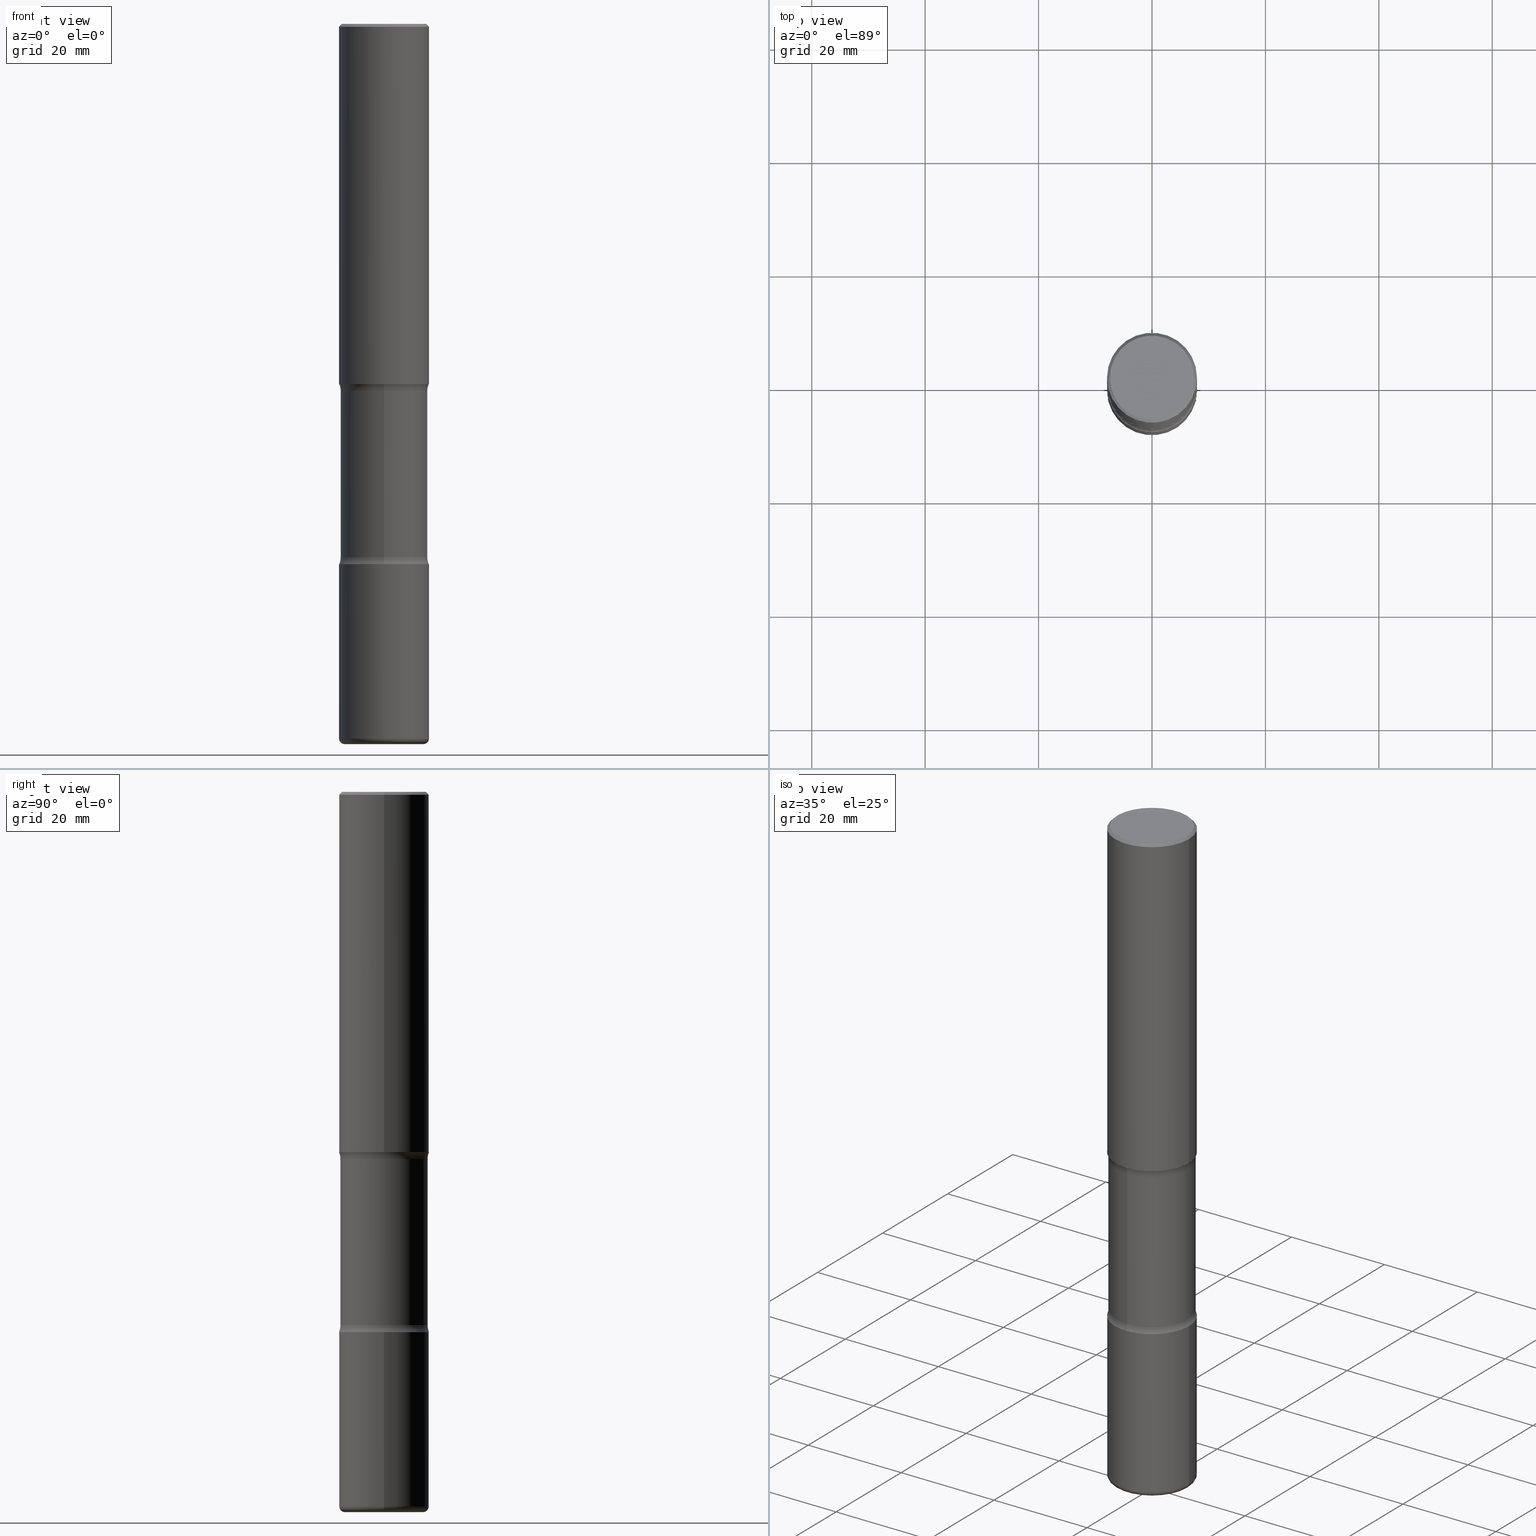
[diagram: canonical four-view strip — front | top / right | iso, engineering-drawing reading convention]
A machine part, canonical four-view strip (front | top / right | iso — engineering-drawing reading convention). The complete STEP part file that produces these views, byte-faithful:
ISO-10303-21;
HEADER;
FILE_DESCRIPTION (( 'STEP AP203' ),
    '1' );
FILE_NAME ('36468.STEP',
    '2024-03-01T23:57:01',
    ( '' ),
    ( '' ),
    'SwSTEP 2.0',
    'SolidWorks 2023',
    '' );
FILE_SCHEMA (( 'CONFIG_CONTROL_DESIGN' ));
ENDSEC;

DATA;
#1 = PLANE ( 'NONE',  #331 ) ;
#2 = CIRCLE ( 'NONE', #424, 0.3125000000000001665 ) ;
#3 = LOCAL_TIME ( 18, 57, 1.000000000000000000, #138 ) ;
#4 = DIRECTION ( 'NONE',  ( 6.982962677686265922E-15, 1.000000000000000000, -3.601450645713572868E-15 ) ) ;
#5 = CARTESIAN_POINT ( 'NONE',  ( -0.3125000000000002776, -2.178820437692046306E-15, -2.500000000000000444 ) ) ;
#6 = CARTESIAN_POINT ( 'NONE',  ( 0.2924999999999997602, -2.110215457714318748E-15, 1.452077414963940822E-29 ) ) ;
#7 = APPROVAL ( #9, 'UNSPECIFIED' ) ;
#8 = CARTESIAN_POINT ( 'NONE',  ( 4.890937612370306439E-31, -6.982962677686338448E-17, -0.02000000000000013572 ) ) ;
#9 = APPROVAL_STATUS ( 'not_yet_approved' ) ;
#10 = PERSON_AND_ORGANIZATION_ROLE ( 'design_owner' ) ;
#11 = DIRECTION ( 'NONE',  ( -2.445468806185136597E-29, 3.491481338843145583E-15, 1.000000000000000000 ) ) ;
#12 = AXIS2_PLACEMENT_3D ( 'NONE', #269, #28, #272 ) ;
#13 = CIRCLE ( 'NONE', #433, 0.2725000000000002420 ) ;
#14 = DATE_AND_TIME ( #360, #544 ) ;
#15 = CARTESIAN_POINT ( 'NONE',  ( 1.212952527867828129E-28, -1.731774744066200960E-14, -4.960000000000001741 ) ) ;
#16 = ADVANCED_FACE ( 'NONE', ( #162 ), #1, .F. ) ;
#17 = CYLINDRICAL_SURFACE ( 'NONE', #251, 0.3125000000000002776 ) ;
#18 = DATE_TIME_ROLE ( 'creation_date' ) ;
#19 = DIRECTION ( 'NONE',  ( -2.445468806185136597E-29, 3.491481338843145583E-15, 1.000000000000000000 ) ) ;
#20 = CLOSED_SHELL ( 'NONE', ( #183, #165, #206, #421, #26, #16 ) ) ;
#21 = CALENDAR_DATE ( 2024, 1, 3 ) ;
#22 = AXIS2_PLACEMENT_3D ( 'NONE', #376, #549, #213 ) ;
#23 = CIRCLE ( 'NONE', #497, 0.1249999999999998612 ) ;
#24 = ORIENTED_EDGE ( 'NONE', *, *, #383, .T. ) ;
#25 = DIRECTION ( 'NONE',  ( -2.368677649628414048E-29, 3.601450645713572868E-15, 1.000000000000000000 ) ) ;
#26 = ADVANCED_FACE ( 'NONE', ( #43 ), #344, .T. ) ;
#27 = ORIENTED_EDGE ( 'NONE', *, *, #479, .T. ) ;
#28 = DIRECTION ( 'NONE',  ( 2.445468806185136597E-29, -3.491481338843145583E-15, -1.000000000000000000 ) ) ;
#29 = VERTEX_POINT ( 'NONE', #378 ) ;
#30 = CARTESIAN_POINT ( 'NONE',  ( 2.985216544710968712E-15, 0.4274999999999870570, -3.701010205144338094 ) ) ;
#31 = CIRCLE ( 'NONE', #100, 0.1249999999999999584 ) ;
#32 = ORIENTED_EDGE ( 'NONE', *, *, #488, .F. ) ;
#33 = EDGE_CURVE ( 'NONE', #340, #113, #65, .T. ) ;
#34 = DIRECTION ( 'NONE',  ( 1.000000000000000000, -6.982962677686269077E-15, 0.000000000000000000 ) ) ;
#35 = ORIENTED_EDGE ( 'NONE', *, *, #488, .T. ) ;
#36 = DIRECTION ( 'NONE',  ( 2.368677649628414609E-29, -3.601450645713572868E-15, -1.000000000000000000 ) ) ;
#37 = DIRECTION ( 'NONE',  ( -2.445468806185136597E-29, 3.491481338843145583E-15, 1.000000000000000000 ) ) ;
#38 = DIRECTION ( 'NONE',  ( 6.982962677686265922E-15, 1.000000000000000000, -3.601450645713572868E-15 ) ) ;
#39 = AXIS2_PLACEMENT_3D ( 'NONE', #475, #308, #177 ) ;
#40 = ORIENTED_EDGE ( 'NONE', *, *, #502, .F. ) ;
#41 = AXIS2_PLACEMENT_3D ( 'NONE', #455, #244, #34 ) ;
#42 = CARTESIAN_POINT ( 'NONE',  ( -2.932862894047238219E-15, -0.4275000000000128697, -3.701010205144334986 ) ) ;
#43 = FACE_OUTER_BOUND ( 'NONE', #454, .T. ) ;
#44 = CARTESIAN_POINT ( 'NONE',  ( -2.075300644325765614E-15, -0.3025000000000174216, -4.999999999999999112 ) ) ;
#45 = EDGE_LOOP ( 'NONE', ( #554, #214, #273, #146 ) ) ;
#46 = CARTESIAN_POINT ( 'NONE',  ( -2.143905624303512894E-15, -0.3125000000000133782, -3.749999999999999556 ) ) ;
#47 = DIRECTION ( 'NONE',  ( 2.368677649628414609E-29, -3.601450645713572868E-15, -1.000000000000000000 ) ) ;
#48 = CLOSED_SHELL ( 'NONE', ( #168, #224, #301, #402, #542, #320, #265, #283 ) ) ;
#49 = CIRCLE ( 'NONE', #362, 0.2924999999999997602 ) ;
#50 = SECURITY_CLASSIFICATION ( '', '', #480 ) ;
#51 = ADVANCED_FACE ( 'NONE', ( #377 ), #164, .T. ) ;
#52 = CARTESIAN_POINT ( 'NONE',  ( 0.000000000000000000, 0.000000000000000000, 0.000000000000000000 ) ) ;
#53 = CARTESIAN_POINT ( 'NONE',  ( 0.3124999999999998335, -2.213735251080466123E-15, -0.02000000000000013572 ) ) ;
#54 = APPROVAL_DATE_TIME ( #14, #443 ) ;
#55 = CARTESIAN_POINT ( 'NONE',  ( 2.042516583223230962E-15, 0.2924999999999997602, -1.021258291611619228E-15 ) ) ;
#56 = EDGE_CURVE ( 'NONE', #414, #282, #160, .T. ) ;
#57 = AXIS2_PLACEMENT_3D ( 'NONE', #543, #540, #195 ) ;
#58 = AXIS2_PLACEMENT_3D ( 'NONE', #425, #381, #38 ) ;
#59 = SHAPE_DEFINITION_REPRESENTATION ( #263, #185 ) ;
#60 = DIRECTION ( 'NONE',  ( 1.000000000000000000, -6.982962677686265922E-15, 0.000000000000000000 ) ) ;
#61 = CARTESIAN_POINT ( 'NONE',  ( 1.212952527867828129E-28, -1.731774744066200960E-14, -4.960000000000001741 ) ) ;
#62 = APPROVAL_ROLE ( '' ) ;
#63 = DIRECTION ( 'NONE',  ( 2.368677649628414609E-29, -3.601450645713572868E-15, -1.000000000000000000 ) ) ;
#64 = ORIENTED_EDGE ( 'NONE', *, *, #179, .F. ) ;
#65 = CIRCLE ( 'NONE', #108, 0.3024999999999997691 ) ;
#66 = AXIS2_PLACEMENT_3D ( 'NONE', #537, #150, #534 ) ;
#67 = CARTESIAN_POINT ( 'NONE',  ( -0.3125000000000002776, -1.298495518141158727E-14, -3.750000000000000888 ) ) ;
#68 = ORIENTED_EDGE ( 'NONE', *, *, #82, .T. ) ;
#69 = CARTESIAN_POINT ( 'NONE',  ( 0.000000000000000000, 0.000000000000000000, 0.000000000000000000 ) ) ;
#70 = ORIENTED_EDGE ( 'NONE', *, *, #117, .T. ) ;
#71 = CARTESIAN_POINT ( 'NONE',  ( 1.213135508522978113E-28, -1.759486832780376370E-14, -5.000000000000000000 ) ) ;
#72 = VERTEX_POINT ( 'NONE', #389 ) ;
#73 = EDGE_CURVE ( 'NONE', #547, #282, #438, .T. ) ;
#74 = DIRECTION ( 'NONE',  ( 2.445468806185136597E-29, -3.491481338843145583E-15, -1.000000000000000000 ) ) ;
#75 = AXIS2_PLACEMENT_3D ( 'NONE', #144, #445, #369 ) ;
#76 = CIRCLE ( 'NONE', #508, 0.2725000000000002420 ) ;
#77 = EDGE_LOOP ( 'NONE', ( #64, #254 ) ) ;
#78 = CARTESIAN_POINT ( 'NONE',  ( 6.209660961158745588E-29, -8.591241713519832709E-15, -2.500000000000000444 ) ) ;
#79 = ORIENTED_EDGE ( 'NONE', *, *, #326, .T. ) ;
#80 = DIRECTION ( 'NONE',  ( 1.000000000000000000, -6.982962677686266711E-15, 4.876176775795936353E-29 ) ) ;
#81 = ORIENTED_EDGE ( 'NONE', *, *, #117, .F. ) ;
#82 = EDGE_CURVE ( 'NONE', #113, #72, #521, .T. ) ;
#83 = CARTESIAN_POINT ( 'NONE',  ( 4.890937612370306439E-31, -6.982962677686338448E-17, -0.02000000000000013572 ) ) ;
#84 = AXIS2_PLACEMENT_3D ( 'NONE', #408, #278, #401 ) ;
#85 = ORIENTED_EDGE ( 'NONE', *, *, #73, .T. ) ;
#86 = CIRCLE ( 'NONE', #41, 0.3125000000000002776 ) ;
#87 = LINE ( 'NONE', #44, #525 ) ;
#88 = ORIENTED_EDGE ( 'NONE', *, *, #124, .T. ) ;
#89 = APPROVAL_STATUS ( 'not_yet_approved' ) ;
#90 = ORIENTED_EDGE ( 'NONE', *, *, #124, .F. ) ;
#91 = EDGE_CURVE ( 'NONE', #239, #541, #153, .T. ) ;
#92 = LINE ( 'NONE', #311, #217 ) ;
#93 = AXIS2_PLACEMENT_3D ( 'NONE', #78, #36, #255 ) ;
#94 = AXIS2_PLACEMENT_3D ( 'NONE', #136, #223, #4 ) ;
#95 = EDGE_CURVE ( 'NONE', #29, #550, #524, .T. ) ;
#96 = CARTESIAN_POINT ( 'NONE',  ( 6.325701993293238251E-29, -8.767676041836138873E-15, -2.548989794855665014 ) ) ;
#97 = DIRECTION ( 'NONE',  ( -1.000000000000000000, 6.982962677686265922E-15, -4.876176775795935793E-29 ) ) ;
#98 = CARTESIAN_POINT ( 'NONE',  ( 6.113672015462842613E-29, -8.728703347107866520E-15, -2.500000000000000444 ) ) ;
#99 = DIRECTION ( 'NONE',  ( 2.368677649628414609E-29, -3.601450645713572868E-15, -1.000000000000000000 ) ) ;
#100 = AXIS2_PLACEMENT_3D ( 'NONE', #30, #281, #111 ) ;
#101 = DIRECTION ( 'NONE',  ( -2.445468806185136877E-29, 3.491481338843145188E-15, 1.000000000000000000 ) ) ;
#102 = ADVANCED_FACE ( 'NONE', ( #487 ), #527, .F. ) ;
#103 = COORDINATED_UNIVERSAL_TIME_OFFSET ( 5, 0, .BEHIND. ) ;
#104 = FACE_OUTER_BOUND ( 'NONE', #280, .T. ) ;
#105 = ORIENTED_EDGE ( 'NONE', *, *, #539, .T. ) ;
#106 = CC_DESIGN_PERSON_AND_ORGANIZATION_ASSIGNMENT ( #536, #184, ( #494 ) ) ;
#107 = VERTEX_POINT ( 'NONE', #528 ) ;
#108 = AXIS2_PLACEMENT_3D ( 'NONE', #557, #47, #506 ) ;
#109 = CARTESIAN_POINT ( 'NONE',  ( 2.182175836777020667E-15, 0.3124999999999915623, -2.500000000000001776 ) ) ;
#110 = VERTEX_POINT ( 'NONE', #5 ) ;
#111 = DIRECTION ( 'NONE',  ( -6.982962677686267499E-15, -1.000000000000000000, 0.000000000000000000 ) ) ;
#112 = LINE ( 'NONE', #499, #456 ) ;
#113 = VERTEX_POINT ( 'NONE', #519 ) ;
#114 = AXIS2_PLACEMENT_3D ( 'NONE', #359, #306, #478 ) ;
#115 = DIRECTION ( 'NONE',  ( -2.445468806185136597E-29, 3.491481338843145583E-15, 1.000000000000000000 ) ) ;
#116 = VERTEX_POINT ( 'NONE', #227 ) ;
#117 = EDGE_CURVE ( 'NONE', #541, #107, #274, .T. ) ;
#118 = DIRECTION ( 'NONE',  ( 1.000000000000000000, -6.860497997771530774E-15, 4.839452144027510076E-29 ) ) ;
#119 = ORIENTED_EDGE ( 'NONE', *, *, #522, .F. ) ;
#120 = ADVANCED_FACE ( 'NONE', ( #262 ), #225, .T. ) ;
#121 = DIRECTION ( 'NONE',  ( 1.000000000000000000, -6.982962677686267499E-15, 0.000000000000000000 ) ) ;
#122 = EDGE_LOOP ( 'NONE', ( #407, #90 ) ) ;
#123 = CARTESIAN_POINT ( 'NONE',  ( -2.109603134314655426E-15, -0.3025000000000128697, -3.701010205144335430 ) ) ;
#124 = EDGE_CURVE ( 'NONE', #116, #298, #2, .T. ) ;
#125 = ORIENTED_EDGE ( 'NONE', *, *, #548, .F. ) ;
#126 = APPROVAL_PERSON_ORGANIZATION ( #135, #443, #395 ) ;
#127 = DIRECTION ( 'NONE',  ( 2.368677649628414329E-29, -3.601450645713572868E-15, -1.000000000000000000 ) ) ;
#128 = EDGE_CURVE ( 'NONE', #110, #325, #353, .T. ) ;
#129 = CARTESIAN_POINT ( 'NONE',  ( 0.000000000000000000, 0.000000000000000000, 0.000000000000000000 ) ) ;
#130 = DIRECTION ( 'NONE',  ( 0.000000000000000000, 0.000000000000000000, 1.000000000000000000 ) ) ;
#131 = DIRECTION ( 'NONE',  ( -2.445468806185136597E-29, 3.491481338843145583E-15, 1.000000000000000000 ) ) ;
#132 = PRODUCT ( '36468', '36468', '', ( #472 ) ) ;
#133 = CARTESIAN_POINT ( 'NONE',  ( 0.2725000000000003531, -1.922060477033151949E-14, -4.960000000000001741 ) ) ;
#134 = LOCAL_TIME ( 18, 57, 1.000000000000000000, #226 ) ;
#135 = PERSON_AND_ORGANIZATION ( #412, #259 ) ;
#136 = CARTESIAN_POINT ( 'NONE',  ( 6.113672015462842613E-29, -8.728703347107866520E-15, -2.500000000000000444 ) ) ;
#137 = DIRECTION ( 'NONE',  ( 2.368677649628414329E-29, -3.601450645713572868E-15, -1.000000000000000000 ) ) ;
#138 = COORDINATED_UNIVERSAL_TIME_OFFSET ( 5, 0, .BEHIND. ) ;
#139 = CARTESIAN_POINT ( 'NONE',  ( 6.209660961158745588E-29, -8.591241713519832709E-15, -2.500000000000000444 ) ) ;
#140 = EDGE_CURVE ( 'NONE', #72, #517, #553, .T. ) ;
#141 = CARTESIAN_POINT ( 'NONE',  ( 0.000000000000000000, 0.000000000000000000, 0.000000000000000000 ) ) ;
#142 = AXIS2_PLACEMENT_3D ( 'NONE', #98, #11, #60 ) ;
#143 = APPROVAL_PERSON_ORGANIZATION ( #268, #7, #62 ) ;
#144 = CARTESIAN_POINT ( 'NONE',  ( 9.170508023194263359E-29, -1.309305502066179899E-14, -3.750000000000000888 ) ) ;
#145 = EDGE_CURVE ( 'NONE', #110, #414, #92, .T. ) ;
#146 = ORIENTED_EDGE ( 'NONE', *, *, #140, .T. ) ;
#147 = APPROVAL_DATE_TIME ( #191, #7 ) ;
#148 = CARTESIAN_POINT ( 'NONE',  ( -0.2725000000000003531, -1.538151848571573369E-14, -4.960000000000001741 ) ) ;
#149 = ORIENTED_EDGE ( 'NONE', *, *, #73, .F. ) ;
#150 = DIRECTION ( 'NONE',  ( 2.368677649628414609E-29, -3.601450645713572868E-15, -1.000000000000000000 ) ) ;
#151 = EDGE_LOOP ( 'NONE', ( #212, #503, #241, #233 ) ) ;
#152 = CC_DESIGN_DATE_AND_TIME_ASSIGNMENT ( #436, #483, ( #50 ) ) ;
#153 = CIRCLE ( 'NONE', #209, 0.03999999999999926531 ) ;
#154 = FACE_OUTER_BOUND ( 'NONE', #464, .T. ) ;
#155 = ORIENTED_EDGE ( 'NONE', *, *, #479, .F. ) ;
#156 = DIRECTION ( 'NONE',  ( 6.860497997771529985E-15, 1.000000000000000000, 0.000000000000000000 ) ) ;
#157 = ORIENTED_EDGE ( 'NONE', *, *, #95, .T. ) ;
#158 = DIRECTION ( 'NONE',  ( 1.000000000000000000, -6.982962677686266711E-15, 0.000000000000000000 ) ) ;
#159 = ORIENTED_EDGE ( 'NONE', *, *, #338, .F. ) ;
#160 = CIRCLE ( 'NONE', #496, 0.3124999999999998335 ) ;
#161 = FACE_OUTER_BOUND ( 'NONE', #512, .T. ) ;
#162 = FACE_OUTER_BOUND ( 'NONE', #466, .T. ) ;
#163 = CARTESIAN_POINT ( 'NONE',  ( 4.890937612370306439E-31, -6.982962677686338448E-17, -0.02000000000000013572 ) ) ;
#164 = CYLINDRICAL_SURFACE ( 'NONE', #505, 0.3125000000000000000 ) ;
#165 = ADVANCED_FACE ( 'NONE', ( #355 ), #476, .T. ) ;
#166 = DIRECTION ( 'NONE',  ( 1.000000000000000000, -6.982962677686267499E-15, 0.000000000000000000 ) ) ;
#167 = EDGE_LOOP ( 'NONE', ( #157, #409 ) ) ;
#168 = ADVANCED_FACE ( 'NONE', ( #484 ), #347, .T. ) ;
#169 = CARTESIAN_POINT ( 'NONE',  ( 0.3125000000000002776, -1.527523085743876049E-14, -3.750000000000000888 ) ) ;
#170 = AXIS2_PLACEMENT_3D ( 'NONE', #55, #390, #97 ) ;
#171 = CARTESIAN_POINT ( 'NONE',  ( 9.170508023194263359E-29, -1.309305502066179899E-14, -3.750000000000000888 ) ) ;
#172 = AXIS2_PLACEMENT_3D ( 'NONE', #83, #386, #158 ) ;
#173 = DIRECTION ( 'NONE',  ( -2.445468806185136597E-29, 3.491481338843145583E-15, 1.000000000000000000 ) ) ;
#174 = MANIFOLD_SOLID_BREP ( 'Body-Move/Copy2[1]', #20 ) ;
#175 = LINE ( 'NONE', #321, #532 ) ;
#176 = PERSON_AND_ORGANIZATION ( #412, #259 ) ;
#177 = DIRECTION ( 'NONE',  ( 6.982962677686265922E-15, 1.000000000000000000, -3.612360983357704414E-15 ) ) ;
#178 = CIRCLE ( 'NONE', #467, 0.3125000000000002776 ) ;
#179 = EDGE_CURVE ( 'NONE', #325, #110, #178, .T. ) ;
#180 = TOROIDAL_SURFACE ( 'NONE', #58, 0.4274999999999996581, 0.1249999999999998612 ) ;
#181 = DATE_AND_TIME ( #400, #3 ) ;
#182 = CARTESIAN_POINT ( 'NONE',  ( 1.213135508522978113E-28, -1.759486832780376370E-14, -5.000000000000000000 ) ) ;
#183 = ADVANCED_FACE ( 'NONE', ( #441 ), #17, .T. ) ;
#184 = PERSON_AND_ORGANIZATION_ROLE ( 'creator' ) ;
#185 = ADVANCED_BREP_SHAPE_REPRESENTATION ( '36468', ( #174, #348, #551, #468 ), #220 ) ;
#186 = CARTESIAN_POINT ( 'NONE',  ( 6.113672015462842613E-29, -8.728703347107866520E-15, -2.500000000000000444 ) ) ;
#187 = APPROVAL_DATE_TIME ( #314, #394 ) ;
#188 = EDGE_CURVE ( 'NONE', #541, #423, #175, .T. ) ;
#189 = DIRECTION ( 'NONE',  ( -2.445468806185136877E-29, 3.491481338843145188E-15, 1.000000000000000000 ) ) ;
#190 = AXIS2_PLACEMENT_3D ( 'NONE', #141, #173, #399 ) ;
#191 = DATE_AND_TIME ( #21, #134 ) ;
#192 = DIRECTION ( 'NONE',  ( 1.000000000000000000, -6.982962677686268288E-15, 0.000000000000000000 ) ) ;
#193 = COORDINATED_UNIVERSAL_TIME_OFFSET ( 5, 0, .BEHIND. ) ;
#194 = ORIENTED_EDGE ( 'NONE', *, *, #279, .T. ) ;
#195 = DIRECTION ( 'NONE',  ( 6.982962677686265922E-15, 1.000000000000000000, -3.601450645713572868E-15 ) ) ;
#196 = ORIENTED_EDGE ( 'NONE', *, *, #350, .F. ) ;
#197 = CC_DESIGN_PERSON_AND_ORGANIZATION_ASSIGNMENT ( #444, #531, ( #380 ) ) ;
#198 = DIRECTION ( 'NONE',  ( 6.982962677686265922E-15, 1.000000000000000000, -3.612360983357705203E-15 ) ) ;
#199 = ORIENTED_EDGE ( 'NONE', *, *, #275, .F. ) ;
#200 = AXIS2_PLACEMENT_3D ( 'NONE', #148, #315, #324 ) ;
#201 = CIRCLE ( 'NONE', #253, 0.2924999999999997602 ) ;
#202 = CARTESIAN_POINT ( 'NONE',  ( 1.222734403092568523E-28, -1.745740669421572989E-14, -5.000000000000000000 ) ) ;
#203 = EDGE_LOOP ( 'NONE', ( #32, #85, #452, #119 ) ) ;
#204 = FACE_OUTER_BOUND ( 'NONE', #122, .T. ) ;
#205 = EDGE_LOOP ( 'NONE', ( #370, #426, #250, #322 ) ) ;
#206 = ADVANCED_FACE ( 'NONE', ( #154 ), #495, .T. ) ;
#207 = CARTESIAN_POINT ( 'NONE',  ( -0.2924999999999997602, 2.077431396611662611E-15, -1.440630921208799100E-29 ) ) ;
#208 = DIRECTION ( 'NONE',  ( 2.438088387897960049E-29, -3.491481338843145188E-15, -1.000000000000000000 ) ) ;
#209 = AXIS2_PLACEMENT_3D ( 'NONE', #133, #300, #357 ) ;
#210 = CARTESIAN_POINT ( 'NONE',  ( 1.222734403092568523E-28, -1.745740669421572989E-14, -5.000000000000000000 ) ) ;
#211 = VECTOR ( 'NONE', #558, 39.37007874015748143 ) ;
#212 = ORIENTED_EDGE ( 'NONE', *, *, #179, .T. ) ;
#213 = DIRECTION ( 'NONE',  ( 6.982962677686265922E-15, 1.000000000000000000, -3.612360983357704414E-15 ) ) ;
#214 = ORIENTED_EDGE ( 'NONE', *, *, #95, .F. ) ;
#215 = CARTESIAN_POINT ( 'NONE',  ( 0.000000000000000000, 0.000000000000000000, 0.000000000000000000 ) ) ;
#216 = ORIENTED_EDGE ( 'NONE', *, *, #91, .T. ) ;
#217 = VECTOR ( 'NONE', #101, 39.37007874015748143 ) ;
#218 = AXIS2_PLACEMENT_3D ( 'NONE', #71, #63, #198 ) ;
#219 = DIRECTION ( 'NONE',  ( -2.445468806185136597E-29, 3.491481338843145583E-15, 1.000000000000000000 ) ) ;
#220 =( GEOMETRIC_REPRESENTATION_CONTEXT ( 3 ) GLOBAL_UNCERTAINTY_ASSIGNED_CONTEXT ( ( #316 ) ) GLOBAL_UNIT_ASSIGNED_CONTEXT ( ( #481, #297, #430 ) ) REPRESENTATION_CONTEXT ( 'NONE', 'WORKASPACE' ) );
#221 = APPLICATION_PROTOCOL_DEFINITION ( 'international standard', 'config_control_design', 1994, #309 ) ;
#222 = DIRECTION ( 'NONE',  ( 1.000000000000000000, -6.982962677686266711E-15, 4.876176775795936353E-29 ) ) ;
#223 = DIRECTION ( 'NONE',  ( 2.368677649628414048E-29, -3.601450645713572868E-15, -1.000000000000000000 ) ) ;
#224 = ADVANCED_FACE ( 'NONE', ( #365 ), #242, .F. ) ;
#225 = CYLINDRICAL_SURFACE ( 'NONE', #190, 0.3125000000000000000 ) ;
#226 = COORDINATED_UNIVERSAL_TIME_OFFSET ( 5, 0, .BEHIND. ) ;
#227 = CARTESIAN_POINT ( 'NONE',  ( -2.143905624303542477E-15, -0.3125000000000087708, -2.499999999999999556 ) ) ;
#228 = CIRCLE ( 'NONE', #458, 0.1249999999999998612 ) ;
#229 = APPROVAL_PERSON_ORGANIZATION ( #176, #394, #413 ) ;
#230 = DIRECTION ( 'NONE',  ( 1.000000000000000000, -6.982962677686268288E-15, 0.000000000000000000 ) ) ;
#231 = ADVANCED_FACE ( 'NONE', ( #546 ), #258, .T. ) ;
#232 = DIRECTION ( 'NONE',  ( 2.438088387897960049E-29, -3.491481338843145188E-15, -1.000000000000000000 ) ) ;
#233 = ORIENTED_EDGE ( 'NONE', *, *, #326, .F. ) ;
#234 = AXIS2_PLACEMENT_3D ( 'NONE', #182, #99, #442 ) ;
#235 = CIRCLE ( 'NONE', #172, 0.3124999999999998335 ) ;
#236 = FACE_OUTER_BOUND ( 'NONE', #167, .T. ) ;
#237 = ORIENTED_EDGE ( 'NONE', *, *, #410, .T. ) ;
#238 = DIRECTION ( 'NONE',  ( -2.445468806185136877E-29, 3.491481338843145188E-15, 1.000000000000000000 ) ) ;
#239 = VERTEX_POINT ( 'NONE', #240 ) ;
#240 = CARTESIAN_POINT ( 'NONE',  ( 0.2725000000000002420, -1.936026402388523977E-14, -5.000000000000000000 ) ) ;
#241 = ORIENTED_EDGE ( 'NONE', *, *, #437, .F. ) ;
#242 = TOROIDAL_SURFACE ( 'NONE', #66, 0.4274999999999999356, 0.1249999999999999861 ) ;
#243 = CIRCLE ( 'NONE', #333, 0.1249999999999999584 ) ;
#244 = DIRECTION ( 'NONE',  ( -2.445468806185136597E-29, 3.491481338843145583E-15, 1.000000000000000000 ) ) ;
#245 = ORIENTED_EDGE ( 'NONE', *, *, #373, .T. ) ;
#246 = CC_DESIGN_PERSON_AND_ORGANIZATION_ASSIGNMENT ( #307, #489, ( #50 ) ) ;
#247 = DIRECTION ( 'NONE',  ( -2.445468806185136597E-29, 3.491481338843145583E-15, 1.000000000000000000 ) ) ;
#248 = ORIENTED_EDGE ( 'NONE', *, *, #56, .T. ) ;
#249 = CARTESIAN_POINT ( 'NONE',  ( 6.113672015462842613E-29, -8.728703347107866520E-15, -2.500000000000000444 ) ) ;
#250 = ORIENTED_EDGE ( 'NONE', *, *, #140, .F. ) ;
#251 = AXIS2_PLACEMENT_3D ( 'NONE', #52, #434, #222 ) ;
#252 = DIRECTION ( 'NONE',  ( -2.445468806185136597E-29, 3.491481338843145583E-15, 1.000000000000000000 ) ) ;
#253 = AXIS2_PLACEMENT_3D ( 'NONE', #215, #115, #516 ) ;
#254 = ORIENTED_EDGE ( 'NONE', *, *, #128, .F. ) ;
#255 = DIRECTION ( 'NONE',  ( 6.982962677686265133E-15, 1.000000000000000000, -3.496765431890254947E-15 ) ) ;
#256 = ORIENTED_EDGE ( 'NONE', *, *, #279, .F. ) ;
#257 = ORIENTED_EDGE ( 'NONE', *, *, #388, .F. ) ;
#258 = CONICAL_SURFACE ( 'NONE', #12, 0.3124999999999998335, 0.7853981633974463916 ) ;
#259 = ORGANIZATION ( 'UNSPECIFIED', 'UNSPECIFIED', '' ) ;
#260 = DIRECTION ( 'NONE',  ( 1.000000000000000000, -6.982962677686271444E-15, 4.883557194083114583E-29 ) ) ;
#261 = CC_DESIGN_PERSON_AND_ORGANIZATION_ASSIGNMENT ( #303, #10, ( #132 ) ) ;
#262 = FACE_OUTER_BOUND ( 'NONE', #151, .T. ) ;
#263 = PRODUCT_DEFINITION_SHAPE ( 'NONE', 'NONE',  #494 ) ;
#264 = DIRECTION ( 'NONE',  ( 1.000000000000000000, -6.982962677686265922E-15, 0.000000000000000000 ) ) ;
#265 = ADVANCED_FACE ( 'NONE', ( #453 ), #485, .F. ) ;
#266 = VECTOR ( 'NONE', #361, 39.37007874015748143 ) ;
#267 = DIRECTION ( 'NONE',  ( -2.445468806185136597E-29, 3.491481338843145583E-15, 1.000000000000000000 ) ) ;
#268 = PERSON_AND_ORGANIZATION ( #412, #259 ) ;
#269 = CARTESIAN_POINT ( 'NONE',  ( 4.890937612370306439E-31, -6.982962677686338448E-17, -0.02000000000000013572 ) ) ;
#270 = ORIENTED_EDGE ( 'NONE', *, *, #522, .T. ) ;
#271 = APPROVAL_STATUS ( 'not_yet_approved' ) ;
#272 = DIRECTION ( 'NONE',  ( -1.000000000000000000, 6.982962677686265133E-15, 0.000000000000000000 ) ) ;
#273 = ORIENTED_EDGE ( 'NONE', *, *, #346, .T. ) ;
#274 = CIRCLE ( 'NONE', #312, 0.3125000000000003331 ) ;
#275 = EDGE_CURVE ( 'NONE', #296, #423, #396, .T. ) ;
#276 = DIRECTION ( 'NONE',  ( -6.982962677686265922E-15, -1.000000000000000000, 3.601450645713572868E-15 ) ) ;
#277 = EDGE_LOOP ( 'NONE', ( #256, #125, #27, #24 ) ) ;
#278 = DIRECTION ( 'NONE',  ( 2.368677649628414609E-29, -3.601450645713572868E-15, -1.000000000000000000 ) ) ;
#279 = EDGE_CURVE ( 'NONE', #340, #116, #228, .T. ) ;
#280 = EDGE_LOOP ( 'NONE', ( #292, #194, #88, #155 ) ) ;
#281 = DIRECTION ( 'NONE',  ( -1.000000000000000000, 6.982962677686265922E-15, -4.883557194083112901E-29 ) ) ;
#282 = VERTEX_POINT ( 'NONE', #447 ) ;
#283 = ADVANCED_FACE ( 'NONE', ( #327 ), #501, .T. ) ;
#284 = AXIS2_PLACEMENT_3D ( 'NONE', #61, #19, #192 ) ;
#285 = LOCAL_TIME ( 18, 57, 1.000000000000000000, #193 ) ;
#286 = DIRECTION ( 'NONE',  ( 2.368677649628414609E-29, -3.601450645713572868E-15, -1.000000000000000000 ) ) ;
#287 = CARTESIAN_POINT ( 'NONE',  ( 0.000000000000000000, 0.000000000000000000, 0.000000000000000000 ) ) ;
#288 = CARTESIAN_POINT ( 'NONE',  ( 2.985216544710939130E-15, 0.4274999999999909428, -2.548989794855666347 ) ) ;
#289 = ORIENTED_EDGE ( 'NONE', *, *, #305, .F. ) ;
#290 = CC_DESIGN_PERSON_AND_ORGANIZATION_ASSIGNMENT ( #364, #351, ( #380 ) ) ;
#291 = CARTESIAN_POINT ( 'NONE',  ( -0.3124999999999998335, 2.112346210000093471E-15, -0.02000000000000013572 ) ) ;
#292 = ORIENTED_EDGE ( 'NONE', *, *, #33, .F. ) ;
#293 = TOROIDAL_SURFACE ( 'NONE', #57, 0.4274999999999996581, 0.1249999999999998612 ) ;
#294 = DIRECTION ( 'NONE',  ( 6.982962677686265922E-15, 1.000000000000000000, -3.496765431890253764E-15 ) ) ;
#295 = CONICAL_SURFACE ( 'NONE', #555, 0.3124999999999998335, 0.7853981633974463916 ) ;
#296 = VERTEX_POINT ( 'NONE', #67 ) ;
#297 =( NAMED_UNIT ( * ) PLANE_ANGLE_UNIT ( ) SI_UNIT ( $, .RADIAN. ) );
#298 = VERTEX_POINT ( 'NONE', #109 ) ;
#299 = DIRECTION ( 'NONE',  ( 1.000000000000000000, 0.000000000000000000, 0.000000000000000000 ) ) ;
#300 = DIRECTION ( 'NONE',  ( -6.982962677686266711E-15, -1.000000000000000000, 3.491481338843145583E-15 ) ) ;
#301 = ADVANCED_FACE ( 'NONE', ( #104 ), #293, .F. ) ;
#302 = CLOSED_SHELL ( 'NONE', ( #120, #429, #231, #102, #450, #51 ) ) ;
#303 = PERSON_AND_ORGANIZATION ( #412, #259 ) ;
#304 = CARTESIAN_POINT ( 'NONE',  ( 2.112346210000215745E-15, 0.3024999999999822831, -5.000000000000000888 ) ) ;
#305 = EDGE_CURVE ( 'NONE', #431, #107, #439, .T. ) ;
#306 = DIRECTION ( 'NONE',  ( 2.368677649628414609E-29, -3.601450645713572868E-15, -1.000000000000000000 ) ) ;
#307 = PERSON_AND_ORGANIZATION ( #412, #259 ) ;
#308 = DIRECTION ( 'NONE',  ( 2.368677649628414609E-29, -3.601450645713572868E-15, -1.000000000000000000 ) ) ;
#309 = APPLICATION_CONTEXT ( 'configuration controlled 3d designs of mechanical parts and assemblies' ) ;
#310 = DESIGN_CONTEXT ( 'detailed design', #341, 'design' ) ;
#311 = CARTESIAN_POINT ( 'NONE',  ( -0.3125000000000000000, 2.220446049250313081E-15, -1.537167215704658232E-29 ) ) ;
#312 = AXIS2_PLACEMENT_3D ( 'NONE', #398, #482, #230 ) ;
#313 = AXIS2_PLACEMENT_3D ( 'NONE', #96, #392, #345 ) ;
#314 = DATE_AND_TIME ( #474, #285 ) ;
#315 = DIRECTION ( 'NONE',  ( 7.105427357601001859E-15, 1.000000000000000000, -3.491481338843145583E-15 ) ) ;
#316 = UNCERTAINTY_MEASURE_WITH_UNIT (LENGTH_MEASURE( 1.000000000000000082E-05 ), #481, 'distance_accuracy_value', 'NONE');
#317 = ORIENTED_EDGE ( 'NONE', *, *, #56, .F. ) ;
#318 = CARTESIAN_POINT ( 'NONE',  ( 0.3125000000000002776, -1.091087918388482645E-14, -2.500000000000000444 ) ) ;
#319 = EDGE_LOOP ( 'NONE', ( #366, #368, #81, #471 ) ) ;
#320 = ADVANCED_FACE ( 'NONE', ( #236 ), #411, .F. ) ;
#321 = CARTESIAN_POINT ( 'NONE',  ( 0.3125000000000002776, -2.182175836776960319E-15, 1.523805242436231477E-29 ) ) ;
#322 = ORIENTED_EDGE ( 'NONE', *, *, #82, .F. ) ;
#323 = AXIS2_PLACEMENT_3D ( 'NONE', #465, #286, #294 ) ;
#324 = DIRECTION ( 'NONE',  ( -1.000000000000000000, 7.105427357601008170E-15, 0.000000000000000000 ) ) ;
#325 = VERTEX_POINT ( 'NONE', #318 ) ;
#326 = EDGE_CURVE ( 'NONE', #325, #282, #112, .T. ) ;
#327 = FACE_OUTER_BOUND ( 'NONE', #405, .T. ) ;
#328 = EDGE_LOOP ( 'NONE', ( #257, #385, #245, #535 ) ) ;
#329 = CARTESIAN_POINT ( 'NONE',  ( 0.3125000000000000000, -1.949992327743896952E-14, -4.960000000000001741 ) ) ;
#330 = ORIENTED_EDGE ( 'NONE', *, *, #338, .T. ) ;
#331 = AXIS2_PLACEMENT_3D ( 'NONE', #171, #208, #420 ) ;
#332 = CIRCLE ( 'NONE', #93, 0.3125000000000001665 ) ;
#333 = AXIS2_PLACEMENT_3D ( 'NONE', #42, #118, #343 ) ;
#334 = CARTESIAN_POINT ( 'NONE',  ( -0.3124999999999998335, 2.112346210000093471E-15, -0.02000000000000013572 ) ) ;
#335 = DIRECTION ( 'NONE',  ( 1.000000000000000000, -6.982962677686266711E-15, 4.876176775795936353E-29 ) ) ;
#336 = DIRECTION ( 'NONE',  ( -6.982962677686266711E-15, -1.000000000000000000, 0.000000000000000000 ) ) ;
#337 = EDGE_LOOP ( 'NONE', ( #149, #449, #270, #248 ) ) ;
#338 = EDGE_CURVE ( 'NONE', #107, #296, #367, .T. ) ;
#339 = DIRECTION ( 'NONE',  ( -1.000000000000000000, 6.982962677686265133E-15, 0.000000000000000000 ) ) ;
#340 = VERTEX_POINT ( 'NONE', #490 ) ;
#341 = APPLICATION_CONTEXT ( 'configuration controlled 3d designs of mechanical parts and assemblies' ) ;
#342 = AXIS2_PLACEMENT_3D ( 'NONE', #15, #267, #260 ) ;
#343 = DIRECTION ( 'NONE',  ( 6.860497997771532351E-15, 1.000000000000000000, 0.000000000000000000 ) ) ;
#344 = CYLINDRICAL_SURFACE ( 'NONE', #523, 0.3125000000000002776 ) ;
#345 = DIRECTION ( 'NONE',  ( 6.982962677686265922E-15, 1.000000000000000000, -3.612360983357705992E-15 ) ) ;
#346 = EDGE_CURVE ( 'NONE', #29, #72, #31, .T. ) ;
#347 = CYLINDRICAL_SURFACE ( 'NONE', #234, 0.3024999999999998246 ) ;
#348 = MANIFOLD_SOLID_BREP ( 'Body-Move/Copy2[2]', #302 ) ;
#349 = DIRECTION ( 'NONE',  ( 0.7071067811865461294, -7.319954787623251312E-15, -0.7071067811865489050 ) ) ;
#350 = EDGE_CURVE ( 'NONE', #107, #541, #415, .T. ) ;
#351 = PERSON_AND_ORGANIZATION_ROLE ( 'creator' ) ;
#352 = LENGTH_MEASURE_WITH_UNIT ( LENGTH_MEASURE( 0.02539999999999999897 ), #520 );
#353 = CIRCLE ( 'NONE', #142, 0.3125000000000002776 ) ;
#354 = CC_DESIGN_APPROVAL ( #443, ( #380 ) ) ;
#355 = FACE_OUTER_BOUND ( 'NONE', #319, .T. ) ;
#356 = EDGE_CURVE ( 'NONE', #446, #547, #49, .T. ) ;
#357 = DIRECTION ( 'NONE',  ( 1.000000000000000000, -6.982962677686266711E-15, 0.000000000000000000 ) ) ;
#358 = COORDINATED_UNIVERSAL_TIME_OFFSET ( 5, 0, .BEHIND. ) ;
#359 = CARTESIAN_POINT ( 'NONE',  ( 9.170508023194263359E-29, -1.309305502066179899E-14, -3.750000000000000888 ) ) ;
#360 = CALENDAR_DATE ( 2024, 1, 3 ) ;
#361 = DIRECTION ( 'NONE',  ( -2.445468806185136877E-29, 3.491481338843145188E-15, 1.000000000000000000 ) ) ;
#362 = AXIS2_PLACEMENT_3D ( 'NONE', #69, #417, #80 ) ;
#363 = CC_DESIGN_SECURITY_CLASSIFICATION ( #50, ( #380 ) ) ;
#364 = PERSON_AND_ORGANIZATION ( #412, #259 ) ;
#365 = FACE_OUTER_BOUND ( 'NONE', #328, .T. ) ;
#366 = ORIENTED_EDGE ( 'NONE', *, *, #502, .T. ) ;
#367 = LINE ( 'NONE', #451, #266 ) ;
#368 = ORIENTED_EDGE ( 'NONE', *, *, #305, .T. ) ;
#369 = DIRECTION ( 'NONE',  ( 1.000000000000000000, -6.982962677686269077E-15, 0.000000000000000000 ) ) ;
#370 = ORIENTED_EDGE ( 'NONE', *, *, #548, .T. ) ;
#371 = VECTOR ( 'NONE', #137, 39.37007874015748143 ) ;
#372 = CC_DESIGN_APPROVAL ( #394, ( #494 ) ) ;
#373 = EDGE_CURVE ( 'NONE', #517, #72, #432, .T. ) ;
#374 = CARTESIAN_POINT ( 'NONE',  ( -2.932862894047263857E-15, -0.4275000000000084288, -2.548989794855663238 ) ) ;
#375 = ORIENTED_EDGE ( 'NONE', *, *, #529, .F. ) ;
#376 = CARTESIAN_POINT ( 'NONE',  ( 9.054466991059770696E-29, -1.291662069234548967E-14, -3.701010205144336318 ) ) ;
#377 = FACE_OUTER_BOUND ( 'NONE', #491, .T. ) ;
#378 = CARTESIAN_POINT ( 'NONE',  ( 2.182175836777051827E-15, 0.3124999999999871769, -3.750000000000001776 ) ) ;
#379 = AXIS2_PLACEMENT_3D ( 'NONE', #202, #232, #492 ) ;
#380 = PRODUCT_DEFINITION_FORMATION_WITH_SPECIFIED_SOURCE ( 'ANY', '', #132, .NOT_KNOWN. ) ;
#381 = DIRECTION ( 'NONE',  ( 2.368677649628414609E-29, -3.601450645713572868E-15, -1.000000000000000000 ) ) ;
#382 = ORIENTED_EDGE ( 'NONE', *, *, #128, .T. ) ;
#383 = EDGE_CURVE ( 'NONE', #298, #116, #332, .T. ) ;
#384 = DIRECTION ( 'NONE',  ( -1.000000000000000000, 6.982962677686265922E-15, -4.883557194083112901E-29 ) ) ;
#385 = ORIENTED_EDGE ( 'NONE', *, *, #470, .T. ) ;
#386 = DIRECTION ( 'NONE',  ( -2.445468806185136597E-29, 3.491481338843145583E-15, 1.000000000000000000 ) ) ;
#387 = ORIENTED_EDGE ( 'NONE', *, *, #373, .F. ) ;
#388 = EDGE_CURVE ( 'NONE', #550, #29, #404, .T. ) ;
#389 = CARTESIAN_POINT ( 'NONE',  ( 2.112346210000185373E-15, 0.3024999999999870570, -3.701010205144337650 ) ) ;
#390 = DIRECTION ( 'NONE',  ( 2.438088387897960049E-29, -3.491481338843145188E-15, -1.000000000000000000 ) ) ;
#391 = CALENDAR_DATE ( 2024, 1, 3 ) ;
#392 = DIRECTION ( 'NONE',  ( 2.368677649628414609E-29, -3.601450645713572868E-15, -1.000000000000000000 ) ) ;
#393 = DIRECTION ( 'NONE',  ( 6.982962677686265133E-15, 1.000000000000000000, -3.496765431890254947E-15 ) ) ;
#394 = APPROVAL ( #89, 'UNSPECIFIED' ) ;
#395 = APPROVAL_ROLE ( '' ) ;
#396 = CIRCLE ( 'NONE', #75, 0.3125000000000002776 ) ;
#397 = CIRCLE ( 'NONE', #313, 0.3024999999999997691 ) ;
#398 = CARTESIAN_POINT ( 'NONE',  ( 1.212952527867828129E-28, -1.731774744066200960E-14, -4.960000000000001741 ) ) ;
#399 = DIRECTION ( 'NONE',  ( 1.000000000000000000, -6.982962677686266711E-15, 4.876176775795936353E-29 ) ) ;
#400 = CALENDAR_DATE ( 2024, 1, 3 ) ;
#401 = DIRECTION ( 'NONE',  ( 6.982962677686265922E-15, 1.000000000000000000, -3.601450645713572868E-15 ) ) ;
#402 = ADVANCED_FACE ( 'NONE', ( #504 ), #180, .F. ) ;
#403 = DIRECTION ( 'NONE',  ( 1.000000000000000000, -6.860497997771530774E-15, 4.839452144027510076E-29 ) ) ;
#404 = CIRCLE ( 'NONE', #323, 0.3125000000000002776 ) ;
#405 = EDGE_LOOP ( 'NONE', ( #375, #510, #68, #387 ) ) ;
#406 = CARTESIAN_POINT ( 'NONE',  ( 9.170508023194263359E-29, -1.309305502066179899E-14, -3.750000000000000888 ) ) ;
#407 = ORIENTED_EDGE ( 'NONE', *, *, #383, .F. ) ;
#408 = CARTESIAN_POINT ( 'NONE',  ( 9.050705008053328258E-29, -1.292200806612949328E-14, -3.701010205144336318 ) ) ;
#409 = ORIENTED_EDGE ( 'NONE', *, *, #388, .T. ) ;
#410 = EDGE_CURVE ( 'NONE', #431, #239, #76, .T. ) ;
#411 = PLANE ( 'NONE',  #515 ) ;
#412 = PERSON ( 'UNSPECIFIED', 'UNSPECIFIED', 'UNSPECIFIED', ('UNSPECIFIED'), ('UNSPECIFIED'), ('UNSPECIFIED') ) ;
#413 = APPROVAL_ROLE ( '' ) ;
#414 = VERTEX_POINT ( 'NONE', #334 ) ;
#415 = CIRCLE ( 'NONE', #284, 0.3125000000000003331 ) ;
#416 = TOROIDAL_SURFACE ( 'NONE', #486, 0.2725000000000003531, 0.03999999999999925143 ) ;
#417 = DIRECTION ( 'NONE',  ( -2.445468806185136597E-29, 3.491481338843145583E-15, 1.000000000000000000 ) ) ;
#418 = EDGE_LOOP ( 'NONE', ( #70, #330, #500, #498 ) ) ;
#419 = CARTESIAN_POINT ( 'NONE',  ( 1.212952527867828129E-28, -1.731774744066200960E-14, -4.960000000000001741 ) ) ;
#420 = DIRECTION ( 'NONE',  ( -1.000000000000000000, 6.982962677686265922E-15, -4.876176775795935793E-29 ) ) ;
#421 = ADVANCED_FACE ( 'NONE', ( #161 ), #416, .T. ) ;
#422 = CARTESIAN_POINT ( 'NONE',  ( 1.222734403092568523E-28, -1.745740669421572989E-14, -5.000000000000000000 ) ) ;
#423 = VERTEX_POINT ( 'NONE', #169 ) ;
#424 = AXIS2_PLACEMENT_3D ( 'NONE', #139, #530, #393 ) ;
#425 = CARTESIAN_POINT ( 'NONE',  ( 6.328856993508127298E-29, -8.763157901956958579E-15, -2.548989794855665014 ) ) ;
#426 = ORIENTED_EDGE ( 'NONE', *, *, #529, .T. ) ;
#427 = CARTESIAN_POINT ( 'NONE',  ( -0.2725000000000002420, -1.530923956534057998E-14, -5.000000000000000000 ) ) ;
#428 = ORIENTED_EDGE ( 'NONE', *, *, #145, .F. ) ;
#429 = ADVANCED_FACE ( 'NONE', ( #469 ), #295, .T. ) ;
#430 =( NAMED_UNIT ( * ) SI_UNIT ( $, .STERADIAN. ) SOLID_ANGLE_UNIT ( ) );
#431 = VERTEX_POINT ( 'NONE', #427 ) ;
#432 = CIRCLE ( 'NONE', #22, 0.3024999999999999356 ) ;
#433 = AXIS2_PLACEMENT_3D ( 'NONE', #422, #511, #121 ) ;
#434 = DIRECTION ( 'NONE',  ( -2.445468806185136597E-29, 3.491481338843145583E-15, 1.000000000000000000 ) ) ;
#435 = DIRECTION ( 'NONE',  ( 1.000000000000000000, -6.982962677686266711E-15, 0.000000000000000000 ) ) ;
#436 = DATE_AND_TIME ( #391, #440 ) ;
#437 = EDGE_CURVE ( 'NONE', #282, #414, #235, .T. ) ;
#438 = LINE ( 'NONE', #53, #448 ) ;
#439 = CIRCLE ( 'NONE', #200, 0.03999999999999926531 ) ;
#440 = LOCAL_TIME ( 18, 57, 1.000000000000000000, #103 ) ;
#441 = FACE_OUTER_BOUND ( 'NONE', #418, .T. ) ;
#442 = DIRECTION ( 'NONE',  ( 6.982962677686265922E-15, 1.000000000000000000, -3.612360983357705203E-15 ) ) ;
#443 = APPROVAL ( #271, 'UNSPECIFIED' ) ;
#444 = PERSON_AND_ORGANIZATION ( #412, #259 ) ;
#445 = DIRECTION ( 'NONE',  ( -2.445468806185136597E-29, 3.491481338843145583E-15, 1.000000000000000000 ) ) ;
#446 = VERTEX_POINT ( 'NONE', #207 ) ;
#447 = CARTESIAN_POINT ( 'NONE',  ( 0.3124999999999998335, -2.213735251080466123E-15, -0.02000000000000013572 ) ) ;
#448 = VECTOR ( 'NONE', #349, 39.37007874015748143 ) ;
#449 = ORIENTED_EDGE ( 'NONE', *, *, #356, .F. ) ;
#450 = ADVANCED_FACE ( 'NONE', ( #556 ), #513, .F. ) ;
#451 = CARTESIAN_POINT ( 'NONE',  ( -0.3125000000000002776, 2.220446049250315053E-15, -1.537167215704659353E-29 ) ) ;
#452 = ORIENTED_EDGE ( 'NONE', *, *, #437, .T. ) ;
#453 = FACE_OUTER_BOUND ( 'NONE', #45, .T. ) ;
#454 = EDGE_LOOP ( 'NONE', ( #159, #493, #538, #199 ) ) ;
#455 = CARTESIAN_POINT ( 'NONE',  ( 9.170508023194263359E-29, -1.309305502066179899E-14, -3.750000000000000888 ) ) ;
#456 = VECTOR ( 'NONE', #189, 39.37007874015748143 ) ;
#457 = ORIENTED_EDGE ( 'NONE', *, *, #275, .T. ) ;
#458 = AXIS2_PLACEMENT_3D ( 'NONE', #374, #403, #156 ) ;
#459 = DIMENSIONAL_EXPONENTS ( 1.000000000000000000, 0.000000000000000000, 0.000000000000000000, 0.000000000000000000, 0.000000000000000000, 0.000000000000000000, 0.000000000000000000 ) ;
#460 = AXIS2_PLACEMENT_3D ( 'NONE', #249, #509, #552 ) ;
#461 = DIRECTION ( 'NONE',  ( -2.445468806185136597E-29, 3.491481338843145583E-15, 1.000000000000000000 ) ) ;
#462 = PRODUCT_RELATED_PRODUCT_CATEGORY ( 'detail', '', ( #132 ) ) ;
#463 = DIRECTION ( 'NONE',  ( 1.000000000000000000, -6.982962677686271444E-15, 4.883557194083114583E-29 ) ) ;
#464 = EDGE_LOOP ( 'NONE', ( #40, #545 ) ) ;
#465 = CARTESIAN_POINT ( 'NONE',  ( 9.170508023194263359E-29, -1.309305502066179899E-14, -3.750000000000000888 ) ) ;
#466 = EDGE_LOOP ( 'NONE', ( #105, #457 ) ) ;
#467 = AXIS2_PLACEMENT_3D ( 'NONE', #186, #219, #264 ) ;
#468 = AXIS2_PLACEMENT_3D ( 'NONE', #518, #130, #299 ) ;
#469 = FACE_OUTER_BOUND ( 'NONE', #203, .T. ) ;
#470 = EDGE_CURVE ( 'NONE', #550, #517, #243, .T. ) ;
#471 = ORIENTED_EDGE ( 'NONE', *, *, #91, .F. ) ;
#472 = MECHANICAL_CONTEXT ( 'NONE', #309, 'mechanical' ) ;
#473 = DIRECTION ( 'NONE',  ( 1.000000000000000000, -6.982962677686266711E-15, 4.876176775795936353E-29 ) ) ;
#474 = CALENDAR_DATE ( 2024, 1, 3 ) ;
#475 = CARTESIAN_POINT ( 'NONE',  ( 9.054466991059770696E-29, -1.291662069234548967E-14, -3.701010205144336318 ) ) ;
#476 = TOROIDAL_SURFACE ( 'NONE', #342, 0.2725000000000003531, 0.03999999999999925143 ) ;
#477 = APPLICATION_PROTOCOL_DEFINITION ( 'international standard', 'config_control_design', 1994, #341 ) ;
#478 = DIRECTION ( 'NONE',  ( 6.982962677686265922E-15, 1.000000000000000000, -3.496765431890253764E-15 ) ) ;
#479 = EDGE_CURVE ( 'NONE', #113, #298, #23, .T. ) ;
#480 = SECURITY_CLASSIFICATION_LEVEL ( 'unclassified' ) ;
#481 =( CONVERSION_BASED_UNIT ( 'INCH', #352 ) LENGTH_UNIT ( ) NAMED_UNIT ( #459 ) );
#482 = DIRECTION ( 'NONE',  ( -2.445468806185136597E-29, 3.491481338843145583E-15, 1.000000000000000000 ) ) ;
#483 = DATE_TIME_ROLE ( 'classification_date' ) ;
#484 = FACE_OUTER_BOUND ( 'NONE', #205, .T. ) ;
#485 = TOROIDAL_SURFACE ( 'NONE', #84, 0.4274999999999999356, 0.1249999999999999861 ) ;
#486 = AXIS2_PLACEMENT_3D ( 'NONE', #419, #252, #463 ) ;
#487 = FACE_OUTER_BOUND ( 'NONE', #559, .T. ) ;
#488 = EDGE_CURVE ( 'NONE', #547, #446, #201, .T. ) ;
#489 = PERSON_AND_ORGANIZATION_ROLE ( 'classification_officer' ) ;
#490 = CARTESIAN_POINT ( 'NONE',  ( -2.109603134314682641E-15, -0.3025000000000085398, -2.548989794855663682 ) ) ;
#491 = EDGE_LOOP ( 'NONE', ( #428, #382, #79, #317 ) ) ;
#492 = DIRECTION ( 'NONE',  ( -1.000000000000000000, 6.982962677686265922E-15, -4.876176775795935793E-29 ) ) ;
#493 = ORIENTED_EDGE ( 'NONE', *, *, #350, .T. ) ;
#494 = PRODUCT_DEFINITION ( 'UNKNOWN', '', #380, #310 ) ;
#495 = PLANE ( 'NONE',  #379 ) ;
#496 = AXIS2_PLACEMENT_3D ( 'NONE', #8, #131, #435 ) ;
#497 = AXIS2_PLACEMENT_3D ( 'NONE', #288, #384, #336 ) ;
#498 = ORIENTED_EDGE ( 'NONE', *, *, #188, .F. ) ;
#499 = CARTESIAN_POINT ( 'NONE',  ( 0.3125000000000000000, -2.182175836776958347E-15, 1.523805242436230075E-29 ) ) ;
#500 = ORIENTED_EDGE ( 'NONE', *, *, #539, .F. ) ;
#501 = CYLINDRICAL_SURFACE ( 'NONE', #218, 0.3024999999999998246 ) ;
#502 = EDGE_CURVE ( 'NONE', #239, #431, #13, .T. ) ;
#503 = ORIENTED_EDGE ( 'NONE', *, *, #145, .T. ) ;
#504 = FACE_OUTER_BOUND ( 'NONE', #277, .T. ) ;
#505 = AXIS2_PLACEMENT_3D ( 'NONE', #287, #461, #335 ) ;
#506 = DIRECTION ( 'NONE',  ( 6.982962677686265922E-15, 1.000000000000000000, -3.612360983357705992E-15 ) ) ;
#507 = CC_DESIGN_DATE_AND_TIME_ASSIGNMENT ( #181, #18, ( #494 ) ) ;
#508 = AXIS2_PLACEMENT_3D ( 'NONE', #210, #247, #166 ) ;
#509 = DIRECTION ( 'NONE',  ( -2.438088387897960049E-29, 3.491481338843145188E-15, 1.000000000000000000 ) ) ;
#510 = ORIENTED_EDGE ( 'NONE', *, *, #33, .T. ) ;
#511 = DIRECTION ( 'NONE',  ( -2.445468806185136597E-29, 3.491481338843145583E-15, 1.000000000000000000 ) ) ;
#512 = EDGE_LOOP ( 'NONE', ( #289, #237, #216, #196 ) ) ;
#513 = PLANE ( 'NONE',  #460 ) ;
#514 = ORIENTED_EDGE ( 'NONE', *, *, #356, .T. ) ;
#515 = AXIS2_PLACEMENT_3D ( 'NONE', #406, #25, #276 ) ;
#516 = DIRECTION ( 'NONE',  ( 1.000000000000000000, -6.982962677686266711E-15, 4.876176775795936353E-29 ) ) ;
#517 = VERTEX_POINT ( 'NONE', #123 ) ;
#518 = CARTESIAN_POINT ( 'NONE',  ( 0.000000000000000000, 0.000000000000000000, 0.000000000000000000 ) ) ;
#519 = CARTESIAN_POINT ( 'NONE',  ( 2.112346210000156974E-15, 0.3024999999999909983, -2.548989794855665902 ) ) ;
#520 =( LENGTH_UNIT ( ) NAMED_UNIT ( * ) SI_UNIT ( $, .METRE. ) );
#521 = LINE ( 'NONE', #304, #371 ) ;
#522 = EDGE_CURVE ( 'NONE', #446, #414, #560, .T. ) ;
#523 = AXIS2_PLACEMENT_3D ( 'NONE', #129, #37, #473 ) ;
#524 = CIRCLE ( 'NONE', #114, 0.3125000000000002776 ) ;
#525 = VECTOR ( 'NONE', #127, 39.37007874015748143 ) ;
#526 = PLANE ( 'NONE',  #94 ) ;
#527 = PLANE ( 'NONE',  #170 ) ;
#528 = CARTESIAN_POINT ( 'NONE',  ( -0.3125000000000000000, -1.509730139141169652E-14, -4.960000000000001741 ) ) ;
#529 = EDGE_CURVE ( 'NONE', #340, #517, #87, .T. ) ;
#530 = DIRECTION ( 'NONE',  ( 2.368677649628414609E-29, -3.601450645713572868E-15, -1.000000000000000000 ) ) ;
#531 = PERSON_AND_ORGANIZATION_ROLE ( 'design_supplier' ) ;
#532 = VECTOR ( 'NONE', #238, 39.37007874015748143 ) ;
#533 = CC_DESIGN_APPROVAL ( #7, ( #50 ) ) ;
#534 = DIRECTION ( 'NONE',  ( 6.982962677686265922E-15, 1.000000000000000000, -3.601450645713572868E-15 ) ) ;
#535 = ORIENTED_EDGE ( 'NONE', *, *, #346, .F. ) ;
#536 = PERSON_AND_ORGANIZATION ( #412, #259 ) ;
#537 = CARTESIAN_POINT ( 'NONE',  ( 9.050705008053328258E-29, -1.292200806612949328E-14, -3.701010205144336318 ) ) ;
#538 = ORIENTED_EDGE ( 'NONE', *, *, #188, .T. ) ;
#539 = EDGE_CURVE ( 'NONE', #423, #296, #86, .T. ) ;
#540 = DIRECTION ( 'NONE',  ( 2.368677649628414609E-29, -3.601450645713572868E-15, -1.000000000000000000 ) ) ;
#541 = VERTEX_POINT ( 'NONE', #329 ) ;
#542 = ADVANCED_FACE ( 'NONE', ( #204 ), #526, .F. ) ;
#543 = CARTESIAN_POINT ( 'NONE',  ( 6.328856993508127298E-29, -8.763157901956958579E-15, -2.548989794855665014 ) ) ;
#544 = LOCAL_TIME ( 18, 57, 1.000000000000000000, #358 ) ;
#545 = ORIENTED_EDGE ( 'NONE', *, *, #410, .F. ) ;
#546 = FACE_OUTER_BOUND ( 'NONE', #337, .T. ) ;
#547 = VERTEX_POINT ( 'NONE', #6 ) ;
#548 = EDGE_CURVE ( 'NONE', #113, #340, #397, .T. ) ;
#549 = DIRECTION ( 'NONE',  ( 2.368677649628414609E-29, -3.601450645713572868E-15, -1.000000000000000000 ) ) ;
#550 = VERTEX_POINT ( 'NONE', #46 ) ;
#551 = MANIFOLD_SOLID_BREP ( 'Body-Move/Copy2[4]', #48 ) ;
#552 = DIRECTION ( 'NONE',  ( 1.000000000000000000, -6.982962677686265922E-15, 4.876176775795935793E-29 ) ) ;
#553 = CIRCLE ( 'NONE', #39, 0.3024999999999999356 ) ;
#554 = ORIENTED_EDGE ( 'NONE', *, *, #470, .F. ) ;
#555 = AXIS2_PLACEMENT_3D ( 'NONE', #163, #74, #339 ) ;
#556 = FACE_OUTER_BOUND ( 'NONE', #77, .T. ) ;
#557 = CARTESIAN_POINT ( 'NONE',  ( 6.325701993293238251E-29, -8.767676041836138873E-15, -2.548989794855665014 ) ) ;
#558 = DIRECTION ( 'NONE',  ( -0.7071067811865461294, 2.468850131082242072E-15, -0.7071067811865489050 ) ) ;
#559 = EDGE_LOOP ( 'NONE', ( #514, #35 ) ) ;
#560 = LINE ( 'NONE', #291, #211 ) ;
ENDSEC;
END-ISO-10303-21;
